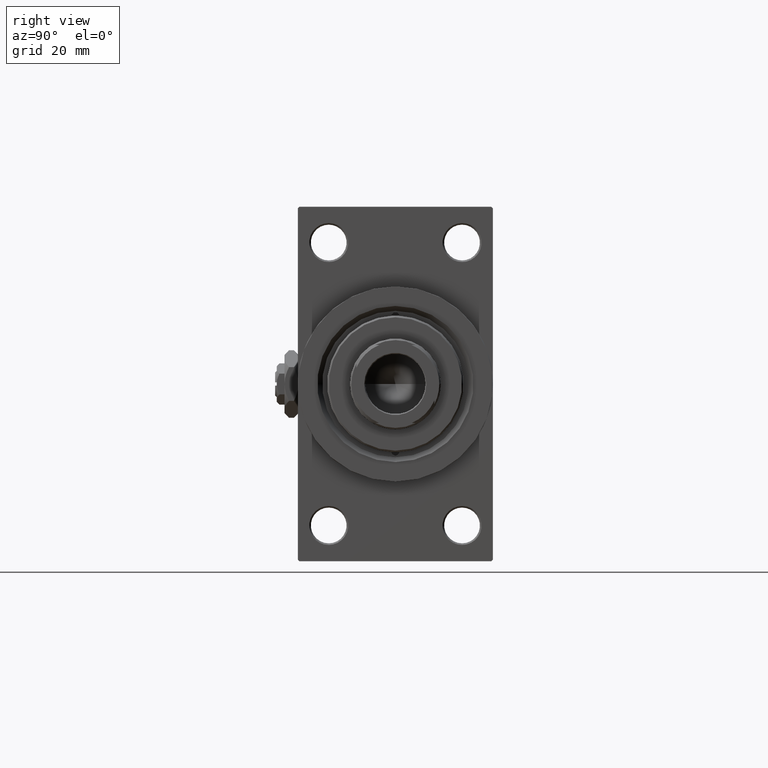
[diagram: clean part render]
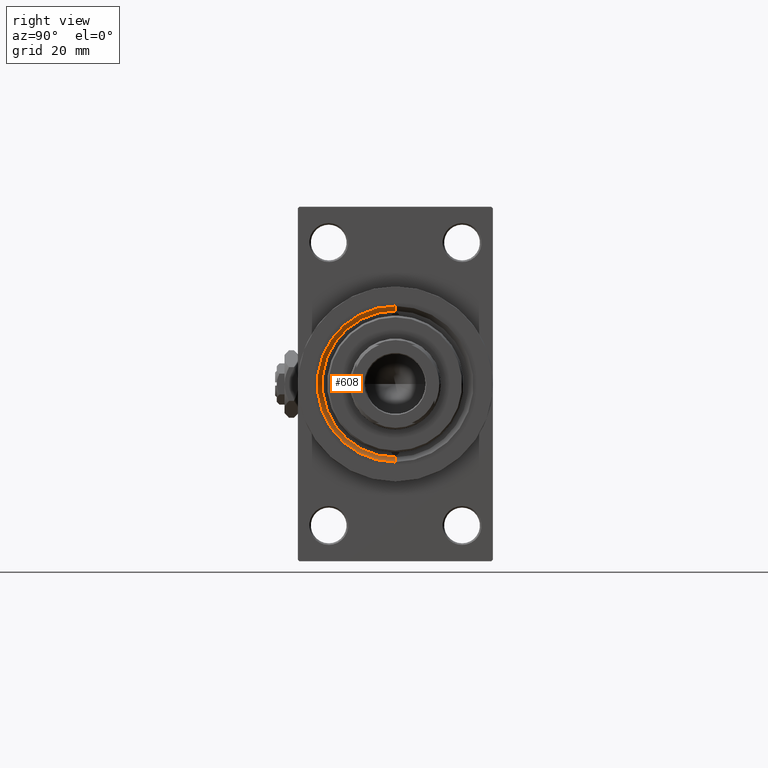
[diagram: same view with one face highlighted and labeled with its STEP entity id]
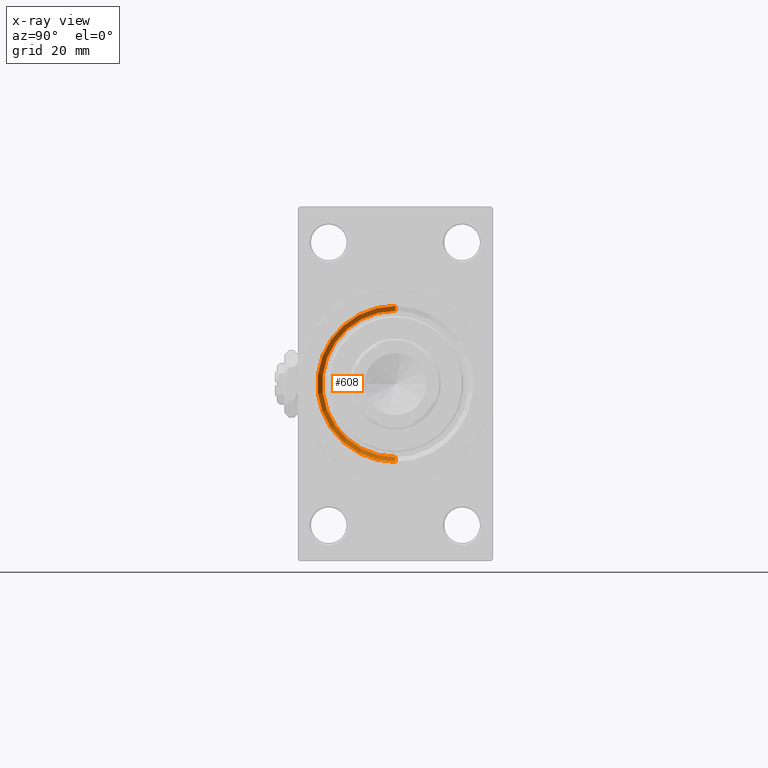
[diagram: x-ray of the same camera — body ghosted, the highlighted face saturated]
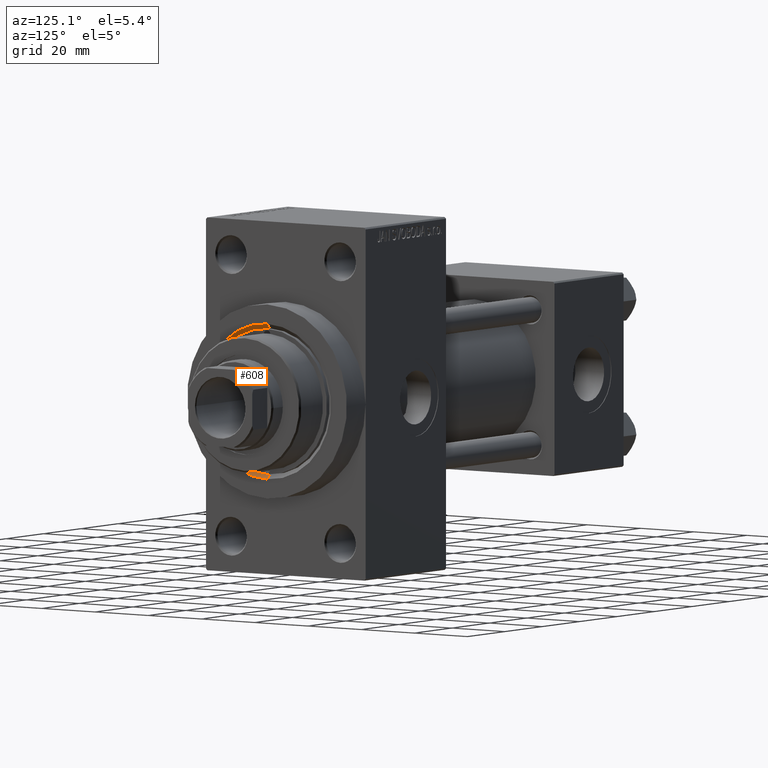
[diagram: same view with one face highlighted and labeled with its STEP entity id]
A machine part, right view. The second image highlights one B-rep face of the part: STEP entity #608.
The next image is the same camera in x-ray: the body ghosted, the highlighted face saturated — about 0% of this face is hidden behind the body in this view.
A second angle (auxiliary view) of the same face is appended — the face is thin or edge-on in the first view.
In plain terms, the highlighted conical surface has half-angle 45 deg.
Its self-contained STEP definition (entity closure, byte-faithful):
#608 = ADVANCED_FACE ( 'NONE', ( #36605 ), #40254, .F. ) ;
#892 = DIRECTION ( 'NONE',  ( 1.000000000000000000, 0.000000000000000000, 0.000000000000000000 ) ) ;
#1386 = EDGE_LOOP ( 'NONE', ( #33987, #43352, #22962, #31097 ) ) ;
#1906 = LINE ( 'NONE', #47791, #17823 ) ;
#2148 = DIRECTION ( 'NONE',  ( 0.7071067811865491270, 8.659560562354913137E-17, 0.7071067811865459074 ) ) ;
#2257 = DIRECTION ( 'NONE',  ( 1.000000000000000000, 0.000000000000000000, 0.000000000000000000 ) ) ;
#2727 = DIRECTION ( 'NONE',  ( 0.000000000000000000, 0.000000000000000000, -1.000000000000000000 ) ) ;
#3380 = CARTESIAN_POINT ( 'NONE',  ( 148.0000000000000284, 2.939152317953644345E-15, 23.99999999999996803 ) ) ;
#3815 = CIRCLE ( 'NONE', #39884, 22.50000000000000355 ) ;
#3826 = VECTOR ( 'NONE', #35733, 1000.000000000000000 ) ;
#4146 = VERTEX_POINT ( 'NONE', #3380 ) ;
#6797 = CARTESIAN_POINT ( 'NONE',  ( 148.0000000000000284, 0.000000000000000000, -23.99999999999996803 ) ) ;
#12923 = CARTESIAN_POINT ( 'NONE',  ( 146.5000000000000568, 0.000000000000000000, 0.000000000000000000 ) ) ;
#15943 = EDGE_CURVE ( 'NONE', #24610, #26444, #15945, .T. ) ;
#15945 = LINE ( 'NONE', #31715, #3826 ) ;
#17823 = VECTOR ( 'NONE', #2148, 1000.000000000000000 ) ;
#18607 = AXIS2_PLACEMENT_3D ( 'NONE', #37088, #2257, #2727 ) ;
#20791 = VERTEX_POINT ( 'NONE', #42416 ) ;
#22962 = ORIENTED_EDGE ( 'NONE', *, *, #44426, .F. ) ;
#24610 = VERTEX_POINT ( 'NONE', #44956 ) ;
#26444 = VERTEX_POINT ( 'NONE', #6797 ) ;
#28456 = DIRECTION ( 'NONE',  ( 0.000000000000000000, 0.000000000000000000, -1.000000000000000000 ) ) ;
#31097 = ORIENTED_EDGE ( 'NONE', *, *, #15943, .F. ) ;
#31362 = CIRCLE ( 'NONE', #33799, 23.99999999999996803 ) ;
#31715 = CARTESIAN_POINT ( 'NONE',  ( 146.5000000000000568, 0.000000000000000000, -22.50000000000000355 ) ) ;
#33799 = AXIS2_PLACEMENT_3D ( 'NONE', #35470, #43009, #39751 ) ;
#33987 = ORIENTED_EDGE ( 'NONE', *, *, #35241, .F. ) ;
#35241 = EDGE_CURVE ( 'NONE', #20791, #24610, #3815, .T. ) ;
#35470 = CARTESIAN_POINT ( 'NONE',  ( 148.0000000000000284, 0.000000000000000000, 0.000000000000000000 ) ) ;
#35733 = DIRECTION ( 'NONE',  ( 0.7071067811865491270, 0.000000000000000000, -0.7071067811865459074 ) ) ;
#36605 = FACE_OUTER_BOUND ( 'NONE', #1386, .T. ) ;
#37088 = CARTESIAN_POINT ( 'NONE',  ( 146.5000000000000568, 0.000000000000000000, 0.000000000000000000 ) ) ;
#39751 = DIRECTION ( 'NONE',  ( 0.000000000000000000, 0.000000000000000000, -1.000000000000000000 ) ) ;
#39884 = AXIS2_PLACEMENT_3D ( 'NONE', #12923, #892, #28456 ) ;
#40254 = CONICAL_SURFACE ( 'NONE', #18607, 22.50000000000000355, 0.7853981633974460586 ) ;
#42416 = CARTESIAN_POINT ( 'NONE',  ( 146.5000000000000568, 2.755455298081545172E-15, 22.50000000000000355 ) ) ;
#43009 = DIRECTION ( 'NONE',  ( -1.000000000000000000, -0.000000000000000000, -0.000000000000000000 ) ) ;
#43352 = ORIENTED_EDGE ( 'NONE', *, *, #46300, .T. ) ;
#44426 = EDGE_CURVE ( 'NONE', #26444, #4146, #31362, .T. ) ;
#44956 = CARTESIAN_POINT ( 'NONE',  ( 146.5000000000000568, 0.000000000000000000, -22.50000000000000355 ) ) ;
#46300 = EDGE_CURVE ( 'NONE', #20791, #4146, #1906, .T. ) ;
#47791 = CARTESIAN_POINT ( 'NONE',  ( 146.5000000000000568, 2.755455298081545172E-15, 22.50000000000000355 ) ) ;